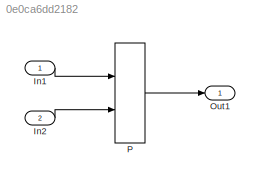
MODEL slx_0e0ca6dd2182
KIND model
CONFIG AbsTol = auto
CONFIG EnableMultiTasking = off
CONFIG FixedStep = auto
CONFIG MaxStep = auto
CONFIG MinStep = auto
CONFIG RelTol = 1e-3
CONFIG SampleTimeConstraint = Unconstrained
CONFIG Solver = FixedStepDiscrete
CONFIG SolverName = FixedStepDiscrete
CONFIG StartTime = 0.0
CONFIG StopTime = 10.0
BLOCK [Inport] In1
  IconDisplay = Port number
  OutMax = 2
BLOCK [Inport] In2
  IconDisplay = Port number
  OutMax = 5
  OutMin = 0
  Port = 2
BLOCK [Outport] Out1
  IconDisplay = Port number
BLOCK [Interpolation_n-D] P
  InputPortMap = u0,u1
  InternalRulePriority = Speed
  InterpMethod = Flat
  NumSelectionDims = 2
  Ports = [2, 1]
  RndMeth = Ceiling
  SaturateOnIntegerOverflow = on
  Table = [53.1400111963179 77.8701781627239 113.842307735869 31.8431574346389 79.0513702138307;63.3901186436836 106.461406574281 61.8101066972083 19.3133302671861 109.051240149945]
  ValidIndexMayReachLast = on
LINE In1:1 -> P:1
LINE In2:1 -> P:2
LINE P:1 -> Out1:1
